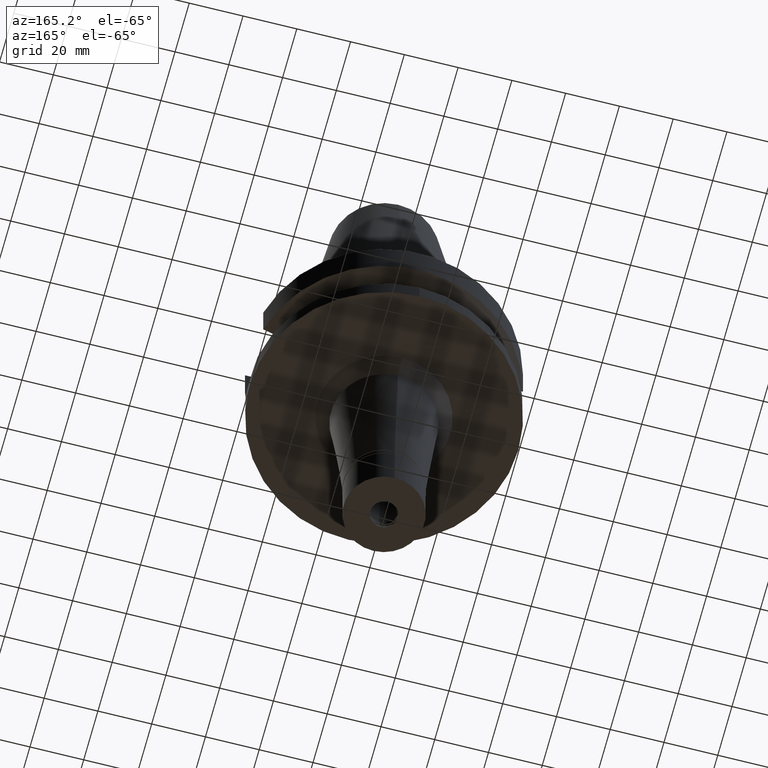
[diagram: clean part render]
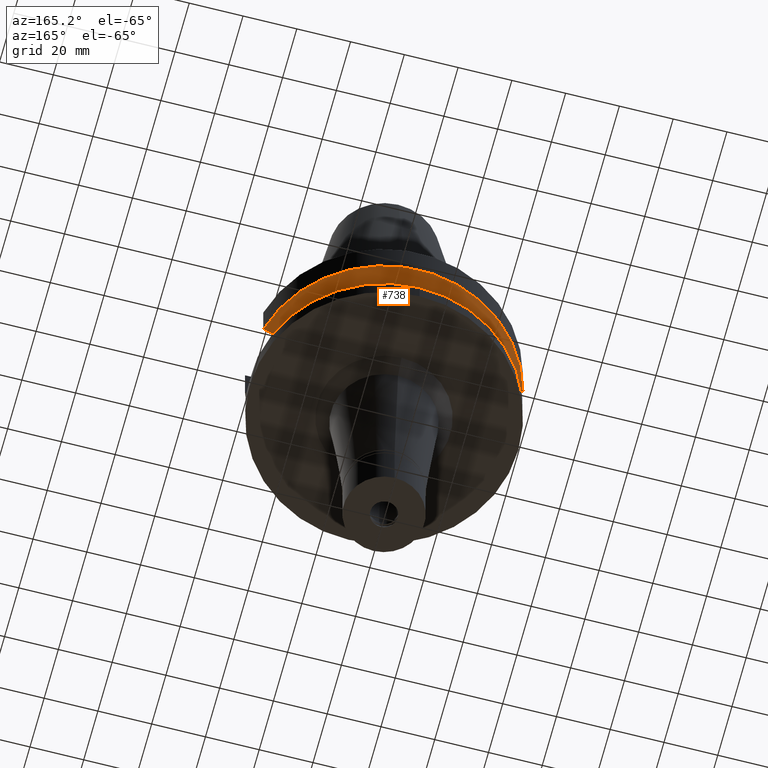
[diagram: same view with one face highlighted and labeled with its STEP entity id]
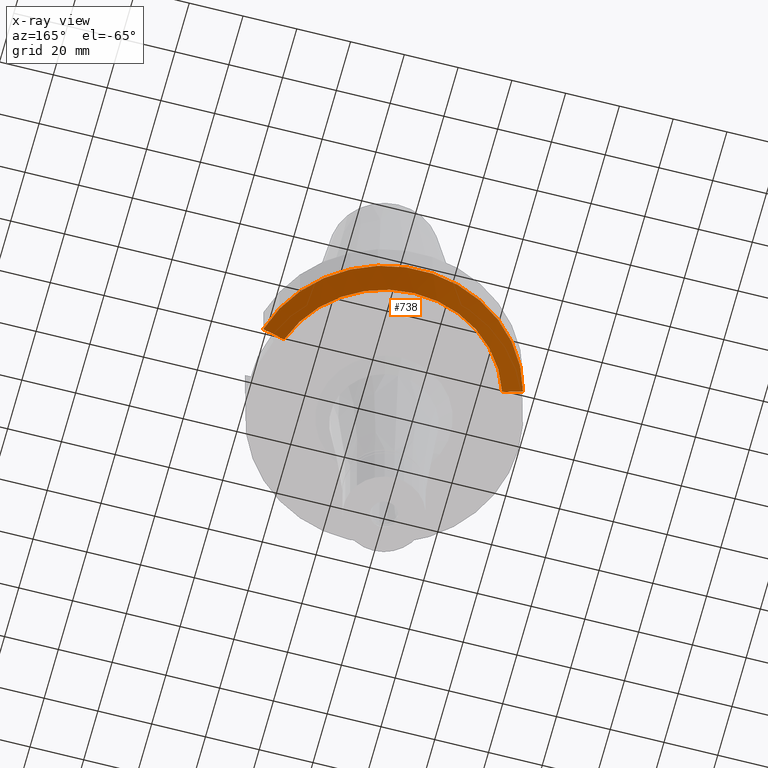
[diagram: x-ray of the same camera — body ghosted, the highlighted face saturated]
A machine part, auxiliary view. The second image highlights one B-rep face of the part: STEP entity #738.
The next image is the same camera in x-ray: the body ghosted, the highlighted face saturated — about 0% of this face is hidden behind the body in this view.
In plain terms, the highlighted conical surface has half-angle 60 deg.
Its self-contained STEP definition (entity closure, byte-faithful):
#91 = CARTESIAN_POINT ( 'NONE',  ( 42.90862464364228401, 12.84999310452902321, -18.67324794666005872 ) ) ;
#150 = FACE_OUTER_BOUND ( 'NONE', #325, .T. ) ;
#186 = CARTESIAN_POINT ( 'NONE',  ( 40.51083297732999711, 12.84999655576999977, -19.99284568674999818 ) ) ;
#316 = CARTESIAN_POINT ( 'NONE',  ( 40.51083297732999711, 12.84999655576999977, -19.99284568674999818 ) ) ;
#325 = EDGE_LOOP ( 'NONE', ( #2628, #1094, #749, #2075 ) ) ;
#392 = CARTESIAN_POINT ( 'NONE',  ( 0.0000000000000000000, 1.006319759053999930E-14, -15.66269223573000069 ) ) ;
#397 = DIRECTION ( 'NONE',  ( 0.0000000000000000000, 1.000000000000000000, 0.0000000000000000000 ) ) ;
#405 = DIRECTION ( 'NONE',  ( 0.0000000000000000000, 0.0000000000000000000, 1.000000000000000000 ) ) ;
#431 = B_SPLINE_CURVE_WITH_KNOTS ( 'NONE', 3,
 ( #2880, #1641, #2450, #1430 ),
 .UNSPECIFIED., .F., .F.,
 ( 4, 4 ),
 ( 0.0000000000000000000, 1.000000000000000000 ),
 .UNSPECIFIED. ) ;
#480 = EDGE_CURVE ( 'NONE', #491, #1636, #2835, .T. ) ;
#491 = VERTEX_POINT ( 'NONE', #1197 ) ;
#574 = AXIS2_PLACEMENT_3D ( 'NONE', #1869, #2912, #397 ) ;
#737 = DIRECTION ( 'NONE',  ( 0.0000000000000000000, 0.0000000000000000000, -1.000000000000000000 ) ) ;
#738 = ADVANCED_FACE ( 'NONE', ( #150 ), #1945, .T. ) ;
#749 = ORIENTED_EDGE ( 'NONE', *, *, #480, .F. ) ;
#871 = EDGE_CURVE ( 'NONE', #491, #2149, #431, .T. ) ;
#960 = CARTESIAN_POINT ( 'NONE',  ( -48.32056912851000163, 12.85000385589999894, -15.66265769488000004 ) ) ;
#1022 = AXIS2_PLACEMENT_3D ( 'NONE', #1976, #737, #1961 ) ;
#1094 = ORIENTED_EDGE ( 'NONE', *, *, #1733, .T. ) ;
#1197 = CARTESIAN_POINT ( 'NONE',  ( -40.51083188481999997, 12.84999999999999964, -19.99281925464999787 ) ) ;
#1369 = DIRECTION ( 'NONE',  ( 0.0000000000000000000, 1.000000000000000000, 0.0000000000000000000 ) ) ;
#1430 = CARTESIAN_POINT ( 'NONE',  ( -48.32056912851000163, 12.85000385589999894, -15.66265769488000004 ) ) ;
#1505 = CARTESIAN_POINT ( 'NONE',  ( 45.51179877582139000, 12.85000770603029174, -17.22986719302744163 ) ) ;
#1636 = VERTEX_POINT ( 'NONE', #186 ) ;
#1641 = CARTESIAN_POINT ( 'NONE',  ( -42.90863201103557145, 12.84999309439108828, -18.67324386309428519 ) ) ;
#1726 = CARTESIAN_POINT ( 'NONE',  ( 48.32056912865999720, 12.85000385533999889, -15.66265769992000045 ) ) ;
#1733 = EDGE_CURVE ( 'NONE', #1936, #1636, #2619, .T. ) ;
#1858 = CIRCLE ( 'NONE', #2479, 50.00000000000000000 ) ;
#1869 = CARTESIAN_POINT ( 'NONE',  ( 0.0000000000000000000, 1.006319759053999930E-14, -17.82775574519000017 ) ) ;
#1936 = VERTEX_POINT ( 'NONE', #1964 ) ;
#1945 = CONICAL_SURFACE ( 'NONE', #574, 46.25000000000000000, 1.047197551196400456 ) ;
#1961 = DIRECTION ( 'NONE',  ( -0.9531960443486575674, 0.3023529411764863672, 0.0000000000000000000 ) ) ;
#1964 = CARTESIAN_POINT ( 'NONE',  ( 48.32056912865999720, 12.85000385533999889, -15.66265769992000045 ) ) ;
#1976 = CARTESIAN_POINT ( 'NONE',  ( 0.0000000000000000000, 1.006319759053999930E-14, -19.99281925464999787 ) ) ;
#2075 = ORIENTED_EDGE ( 'NONE', *, *, #871, .T. ) ;
#2149 = VERTEX_POINT ( 'NONE', #960 ) ;
#2450 = CARTESIAN_POINT ( 'NONE',  ( -45.51180270084345381, 12.85000770715506491, -17.22986500285875877 ) ) ;
#2479 = AXIS2_PLACEMENT_3D ( 'NONE', #392, #405, #1369 ) ;
#2525 = EDGE_CURVE ( 'NONE', #1936, #2149, #1858, .T. ) ;
#2619 = B_SPLINE_CURVE_WITH_KNOTS ( 'NONE', 3,
 ( #1726, #1505, #91, #316 ),
 .UNSPECIFIED., .F., .F.,
 ( 4, 4 ),
 ( 0.0000000000000000000, 1.000000000000000000 ),
 .UNSPECIFIED. ) ;
#2628 = ORIENTED_EDGE ( 'NONE', *, *, #2525, .F. ) ;
#2835 = CIRCLE ( 'NONE', #1022, 42.50000000000002132 ) ;
#2880 = CARTESIAN_POINT ( 'NONE',  ( -40.51083188481999997, 12.84999999999999964, -19.99281925464999787 ) ) ;
#2912 = DIRECTION ( 'NONE',  ( 0.0000000000000000000, 0.0000000000000000000, 1.000000000000000000 ) ) ;